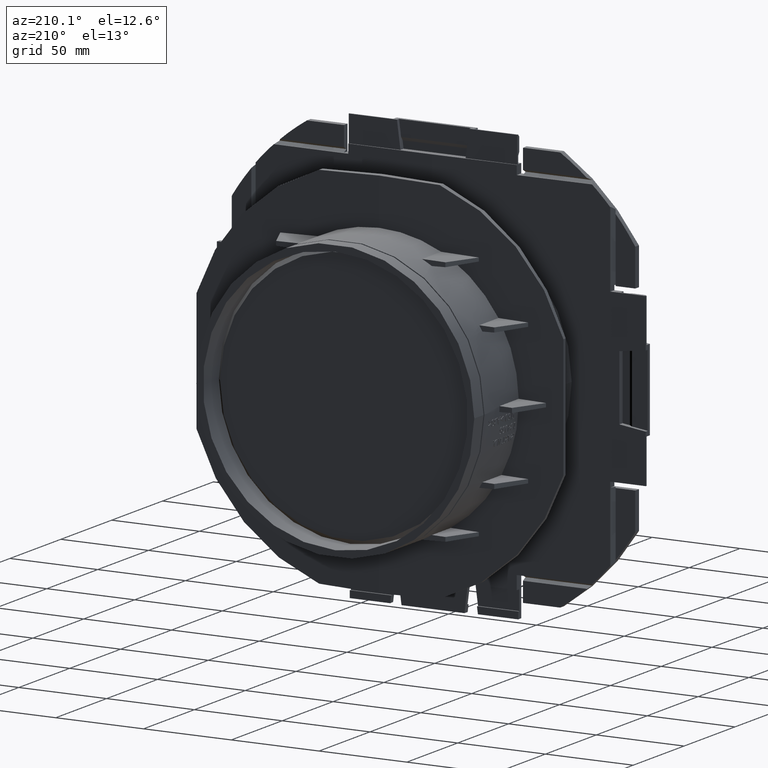
[diagram: clean part render]
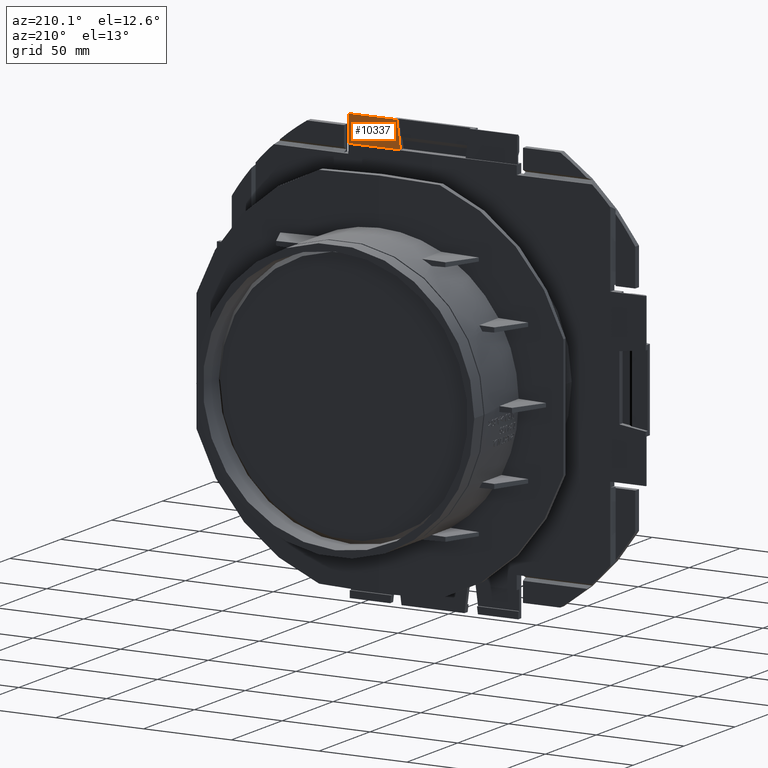
[diagram: same view with one face highlighted and labeled with its STEP entity id]
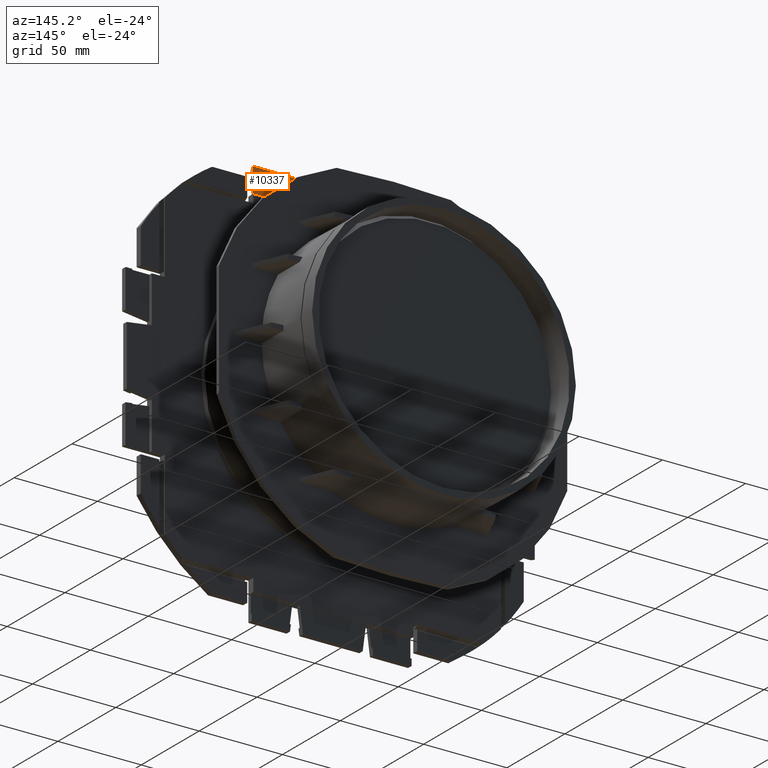
[diagram: same view with one face highlighted and labeled with its STEP entity id]
A machine part, auxiliary view. The second image highlights one B-rep face of the part: STEP entity #10337.
A second angle (auxiliary view) of the same face is appended — the face is thin or edge-on in the first view.
In plain terms, the highlighted planar face has unit normal (0, 1, 0).
Its self-contained STEP definition (entity closure, byte-faithful):
#907=FACE_OUTER_BOUND('',#1470,.T.);
#1470=EDGE_LOOP('',(#7719,#7720,#7721,#7722));
#2344=LINE('',#17930,#3339);
#2353=LINE('',#17948,#3348);
#2394=LINE('',#18541,#3389);
#2395=LINE('',#18542,#3390);
#3339=VECTOR('',#12840,10.);
#3348=VECTOR('',#12851,10.);
#3389=VECTOR('',#12908,10.);
#3390=VECTOR('',#12909,10.);
#4524=VERTEX_POINT('',#17927);
#4525=VERTEX_POINT('',#17929);
#4533=VERTEX_POINT('',#17947);
#4568=VERTEX_POINT('',#18540);
#5683=EDGE_CURVE('',#4525,#4524,#2344,.T.);
#5692=EDGE_CURVE('',#4533,#4525,#2353,.F.);
#5758=EDGE_CURVE('',#4524,#4568,#2394,.T.);
#5759=EDGE_CURVE('',#4533,#4568,#2395,.F.);
#7719=ORIENTED_EDGE('',*,*,#5683,.T.);
#7720=ORIENTED_EDGE('',*,*,#5758,.T.);
#7721=ORIENTED_EDGE('',*,*,#5759,.F.);
#7722=ORIENTED_EDGE('',*,*,#5692,.T.);
#9355=PLANE('',#11127);
#10337=ADVANCED_FACE('',(#907),#9355,.T.);
#11127=AXIS2_PLACEMENT_3D('',#18539,#12906,#12907);
#12840=DIRECTION('',(1.,0.,6.12323399573677E-17));
#12851=DIRECTION('',(-0.132163720091018,0.,-0.991227900682635));
#12906=DIRECTION('center_axis',(0.,1.,0.));
#12907=DIRECTION('ref_axis',(0.,0.,1.));
#12908=DIRECTION('',(6.12416673599373E-17,0.,-1.));
#12909=DIRECTION('',(-1.,0.,0.));
#17927=CARTESIAN_POINT('',(47.9911345078446,-84.5,121.2));
#17929=CARTESIAN_POINT('',(20.5528286126214,-84.5,121.2));
#17930=CARTESIAN_POINT('',(-1.23892409847496E-14,-84.5,121.2));
#17947=CARTESIAN_POINT('',(18.5458465866501,-84.5,106.147634805215));
#17948=CARTESIAN_POINT('',(12.4340019119642,-84.5,60.3087997450714));
#18539=CARTESIAN_POINT('Origin',(-8.36431586720248E-15,-84.5,-3.48946708783352E-15));
#18540=CARTESIAN_POINT('',(47.9911345078446,-84.5,106.147634805215));
#18541=CARTESIAN_POINT('',(47.9911345078446,-84.5,50.5));
#18542=CARTESIAN_POINT('',(-12.,-84.5,106.147634805215));